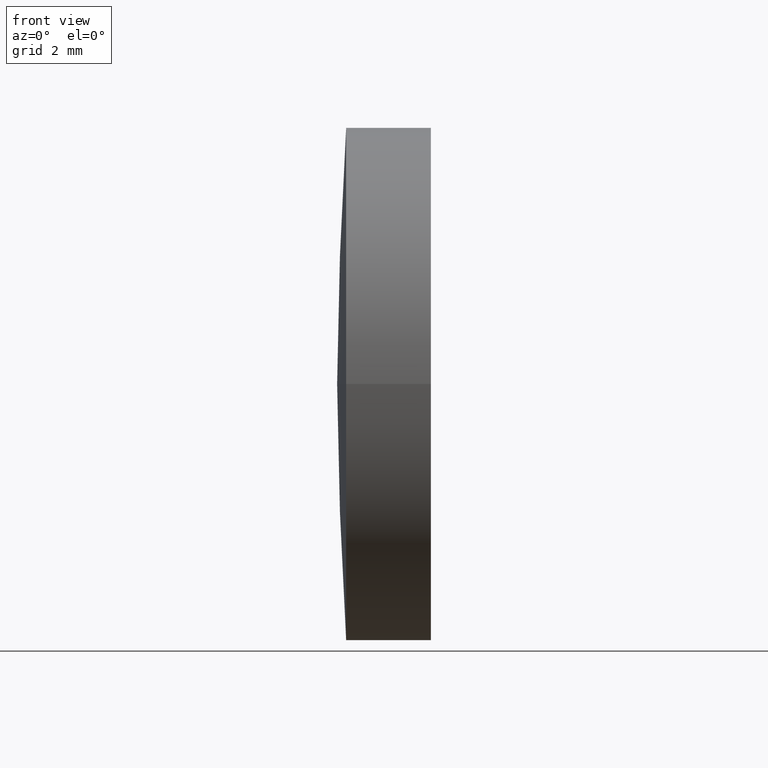
[diagram: clean part render]
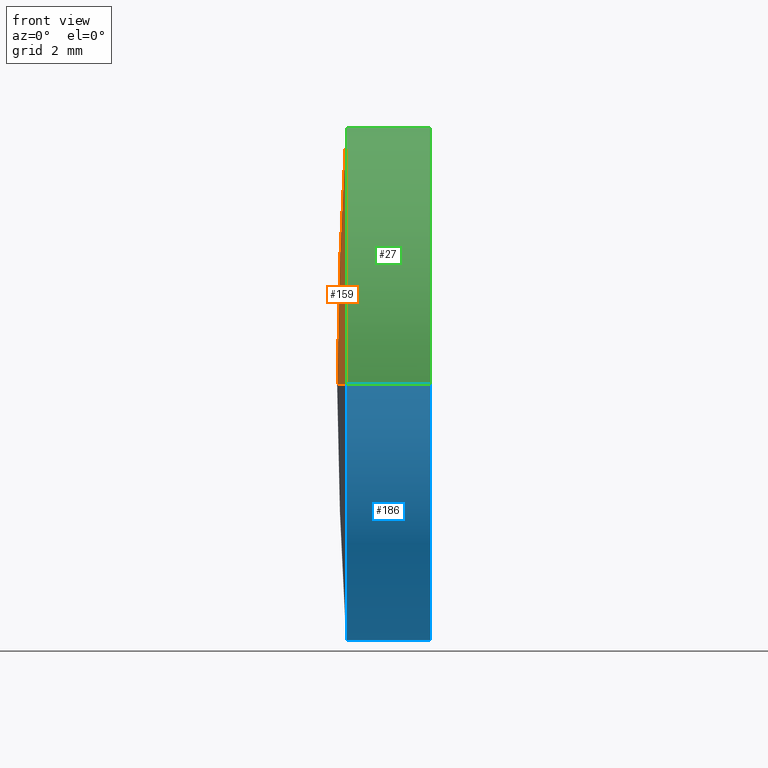
[diagram: same view with three faces highlighted in distinct colors, each labeled with its STEP entity id]
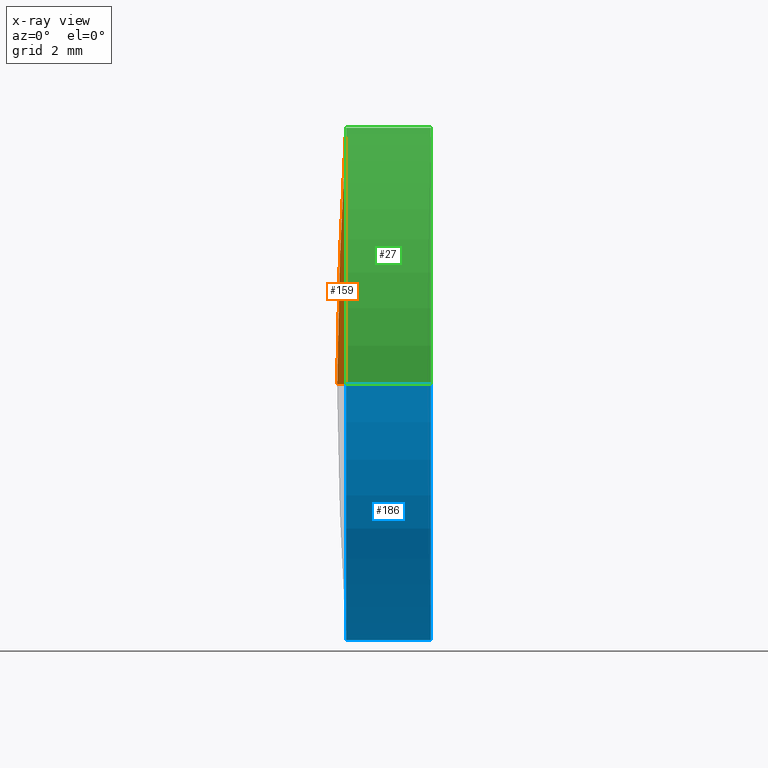
[diagram: x-ray of the same camera — body ghosted, the three highlighted faces saturated]
A machine part, front view with three faces highlighted in distinct colors.
The next image is the same camera in x-ray (body ghosted, the three faces saturated) — at least one of them is partly hidden behind the body in this view.
Their STEP definitions:

[orange] entity #159 — the highlighted spherical surface has radius 89 mm.
#3 = VERTEX_POINT ( 'NONE', #95 ) ;
#12 = AXIS2_PLACEMENT_3D ( 'NONE', #160, #147, #156 ) ;
#13 = DIRECTION ( 'NONE',  ( -0.0000000000000000000, 0.0000000000000000000, -1.000000000000000000 ) ) ;
#16 = DIRECTION ( 'NONE',  ( -0.0000000000000000000, 0.0000000000000000000, 1.000000000000000000 ) ) ;
#17 = EDGE_CURVE ( 'NONE', #154, #36, #68, .T. ) ;
#20 = AXIS2_PLACEMENT_3D ( 'NONE', #99, #13, #105 ) ;
#25 = EDGE_CURVE ( 'NONE', #154, #3, #52, .T. ) ;
#30 = CARTESIAN_POINT ( 'NONE',  ( 61.49363409550321100, 26.35842023547024800, -7.654042494670787000E-016 ) ) ;
#36 = VERTEX_POINT ( 'NONE', #145 ) ;
#37 = AXIS2_PLACEMENT_3D ( 'NONE', #132, #16, #45 ) ;
#42 = DIRECTION ( 'NONE',  ( -8.496118506040342700E-032, 1.224646799147353200E-016, -1.000000000000000000 ) ) ;
#45 = DIRECTION ( 'NONE',  ( 1.000000000000000000, 0.0000000000000000000, 0.0000000000000000000 ) ) ;
#52 = CIRCLE ( 'NONE', #100, 89.00000000000001400 ) ;
#63 = FACE_OUTER_BOUND ( 'NONE', #92, .T. ) ;
#68 = CIRCLE ( 'NONE', #12, 6.249999999999981300 ) ;
#83 = DIRECTION ( 'NONE',  ( 0.0000000000000000000, 1.000000000000000000, 1.224646799147353000E-016 ) ) ;
#92 = EDGE_LOOP ( 'NONE', ( #172, #115, #120 ) ) ;
#95 = CARTESIAN_POINT ( 'NONE',  ( 61.27391062131722100, 32.60842023547011300, 0.0000000000000000000 ) ) ;
#99 = CARTESIAN_POINT ( 'NONE',  ( 150.2739106213172400, 32.60842023547017000, 0.0000000000000000000 ) ) ;
#100 = AXIS2_PLACEMENT_3D ( 'NONE', #131, #42, #83 ) ;
#104 = EDGE_CURVE ( 'NONE', #36, #3, #169, .T. ) ;
#105 = DIRECTION ( 'NONE',  ( -6.237208003512114900E-016, 1.000000000000000000, 0.0000000000000000000 ) ) ;
#114 = SPHERICAL_SURFACE ( 'NONE', #20, 89.00000000000001400 ) ;
#115 = ORIENTED_EDGE ( 'NONE', *, *, #17, .T. ) ;
#120 = ORIENTED_EDGE ( 'NONE', *, *, #104, .T. ) ;
#131 = CARTESIAN_POINT ( 'NONE',  ( 150.2739106213172400, 32.60842023547017000, 0.0000000000000000000 ) ) ;
#132 = CARTESIAN_POINT ( 'NONE',  ( 150.2739106213172400, 32.60842023547017000, 0.0000000000000000000 ) ) ;
#145 = CARTESIAN_POINT ( 'NONE',  ( 61.49363409550321100, 38.85842023547002100, 0.0000000000000000000 ) ) ;
#147 = DIRECTION ( 'NONE',  ( -1.000000000000000000, -6.937607244762875000E-016, -0.0000000000000000000 ) ) ;
#154 = VERTEX_POINT ( 'NONE', #30 ) ;
#156 = DIRECTION ( 'NONE',  ( 1.110223024625159900E-015, -1.000000000000000000, 0.0000000000000000000 ) ) ;
#159 = ADVANCED_FACE ( 'NONE', ( #63 ), #114, .T. ) ;
#160 = CARTESIAN_POINT ( 'NONE',  ( 61.49363409550322500, 32.60842023547016300, 0.0000000000000000000 ) ) ;
#169 = CIRCLE ( 'NONE', #37, 89.00000000000002800 ) ;
#172 = ORIENTED_EDGE ( 'NONE', *, *, #25, .F. ) ;

[blue] entity #186 — the highlighted cylindrical surface (partial cylindrical patch) has radius 6.25 mm, axis along (-1, -0, -0).
#4 = EDGE_CURVE ( 'NONE', #125, #154, #127, .T. ) ;
#9 = CARTESIAN_POINT ( 'NONE',  ( 57.97224564898159100, 26.35842023547018400, 0.0000000000000000000 ) ) ;
#10 = LINE ( 'NONE', #69, #146 ) ;
#18 = ORIENTED_EDGE ( 'NONE', *, *, #170, .T. ) ;
#19 = CYLINDRICAL_SURFACE ( 'NONE', #126, 6.249999999999977800 ) ;
#28 = DIRECTION ( 'NONE',  ( 1.110223024625159900E-015, -1.000000000000000000, 0.0000000000000000000 ) ) ;
#30 = CARTESIAN_POINT ( 'NONE',  ( 61.49363409550321100, 26.35842023547024800, -7.654042494670787000E-016 ) ) ;
#36 = VERTEX_POINT ( 'NONE', #145 ) ;
#40 = EDGE_CURVE ( 'NONE', #123, #36, #10, .T. ) ;
#50 = CARTESIAN_POINT ( 'NONE',  ( 57.97224564898158400, 32.60842023547016300, 0.0000000000000000000 ) ) ;
#54 = ORIENTED_EDGE ( 'NONE', *, *, #96, .F. ) ;
#57 = CARTESIAN_POINT ( 'NONE',  ( 63.55530463170246200, 38.85842023547034100, 0.0000000000000000000 ) ) ;
#58 = DIRECTION ( 'NONE',  ( 1.110223024625160500E-015, -1.000000000000000000, 0.0000000000000000000 ) ) ;
#66 = AXIS2_PLACEMENT_3D ( 'NONE', #133, #150, #176 ) ;
#69 = CARTESIAN_POINT ( 'NONE',  ( 57.97224564898157700, 38.85842023547014200, 7.654042494670930000E-016 ) ) ;
#76 = ORIENTED_EDGE ( 'NONE', *, *, #40, .F. ) ;
#78 = CIRCLE ( 'NONE', #189, 6.249999999999981300 ) ;
#82 = VECTOR ( 'NONE', #116, 1000.000000000000000 ) ;
#91 = FACE_OUTER_BOUND ( 'NONE', #181, .T. ) ;
#96 = EDGE_CURVE ( 'NONE', #36, #154, #78, .T. ) ;
#102 = DIRECTION ( 'NONE',  ( -1.000000000000000000, -6.937607244762875000E-016, -0.0000000000000000000 ) ) ;
#116 = DIRECTION ( 'NONE',  ( -1.000000000000000000, -6.937607244762875000E-016, -0.0000000000000000000 ) ) ;
#123 = VERTEX_POINT ( 'NONE', #57 ) ;
#125 = VERTEX_POINT ( 'NONE', #134 ) ;
#126 = AXIS2_PLACEMENT_3D ( 'NONE', #50, #102, #58 ) ;
#127 = LINE ( 'NONE', #9, #82 ) ;
#133 = CARTESIAN_POINT ( 'NONE',  ( 63.55530463170244800, 32.60842023547017000, 0.0000000000000000000 ) ) ;
#134 = CARTESIAN_POINT ( 'NONE',  ( 63.55530463170246200, 26.35842023546987200, -7.654042494671163700E-016 ) ) ;
#139 = CIRCLE ( 'NONE', #66, 6.249999999999974200 ) ;
#145 = CARTESIAN_POINT ( 'NONE',  ( 61.49363409550321100, 38.85842023547002100, 0.0000000000000000000 ) ) ;
#146 = VECTOR ( 'NONE', #182, 1000.000000000000000 ) ;
#149 = DIRECTION ( 'NONE',  ( -1.000000000000000000, -6.937607244762875000E-016, -0.0000000000000000000 ) ) ;
#150 = DIRECTION ( 'NONE',  ( -1.000000000000000000, -6.937607244762875000E-016, -0.0000000000000000000 ) ) ;
#151 = CARTESIAN_POINT ( 'NONE',  ( 61.49363409550322500, 32.60842023547016300, 0.0000000000000000000 ) ) ;
#154 = VERTEX_POINT ( 'NONE', #30 ) ;
#170 = EDGE_CURVE ( 'NONE', #123, #125, #139, .T. ) ;
#176 = DIRECTION ( 'NONE',  ( 0.0000000000000000000, -1.000000000000000000, 0.0000000000000000000 ) ) ;
#177 = ORIENTED_EDGE ( 'NONE', *, *, #4, .T. ) ;
#181 = EDGE_LOOP ( 'NONE', ( #76, #18, #177, #54 ) ) ;
#182 = DIRECTION ( 'NONE',  ( -1.000000000000000000, -6.937607244762875000E-016, -0.0000000000000000000 ) ) ;
#186 = ADVANCED_FACE ( 'NONE', ( #91 ), #19, .T. ) ;
#189 = AXIS2_PLACEMENT_3D ( 'NONE', #151, #149, #28 ) ;

[green] entity #27 — the highlighted cylindrical surface (partial cylindrical patch) has radius 6.25 mm, axis along (-1, -0, -0).
#4 = EDGE_CURVE ( 'NONE', #125, #154, #127, .T. ) ;
#7 = DIRECTION ( 'NONE',  ( -1.000000000000000000, -6.937607244762875000E-016, -0.0000000000000000000 ) ) ;
#9 = CARTESIAN_POINT ( 'NONE',  ( 57.97224564898159100, 26.35842023547018400, 0.0000000000000000000 ) ) ;
#10 = LINE ( 'NONE', #69, #146 ) ;
#12 = AXIS2_PLACEMENT_3D ( 'NONE', #160, #147, #156 ) ;
#14 = CARTESIAN_POINT ( 'NONE',  ( 63.55530463170244800, 32.60842023547017000, 0.0000000000000000000 ) ) ;
#15 = DIRECTION ( 'NONE',  ( 0.0000000000000000000, -1.000000000000000000, 0.0000000000000000000 ) ) ;
#17 = EDGE_CURVE ( 'NONE', #154, #36, #68, .T. ) ;
#22 = ORIENTED_EDGE ( 'NONE', *, *, #40, .T. ) ;
#27 = ADVANCED_FACE ( 'NONE', ( #152 ), #158, .T. ) ;
#30 = CARTESIAN_POINT ( 'NONE',  ( 61.49363409550321100, 26.35842023547024800, -7.654042494670787000E-016 ) ) ;
#35 = ORIENTED_EDGE ( 'NONE', *, *, #17, .F. ) ;
#36 = VERTEX_POINT ( 'NONE', #145 ) ;
#40 = EDGE_CURVE ( 'NONE', #123, #36, #10, .T. ) ;
#41 = CARTESIAN_POINT ( 'NONE',  ( 57.97224564898158400, 32.60842023547016300, 0.0000000000000000000 ) ) ;
#51 = AXIS2_PLACEMENT_3D ( 'NONE', #14, #136, #15 ) ;
#57 = CARTESIAN_POINT ( 'NONE',  ( 63.55530463170246200, 38.85842023547034100, 0.0000000000000000000 ) ) ;
#68 = CIRCLE ( 'NONE', #12, 6.249999999999981300 ) ;
#69 = CARTESIAN_POINT ( 'NONE',  ( 57.97224564898157700, 38.85842023547014200, 7.654042494670930000E-016 ) ) ;
#77 = ORIENTED_EDGE ( 'NONE', *, *, #4, .F. ) ;
#82 = VECTOR ( 'NONE', #116, 1000.000000000000000 ) ;
#97 = DIRECTION ( 'NONE',  ( 1.110223024625160500E-015, -1.000000000000000000, 0.0000000000000000000 ) ) ;
#108 = ORIENTED_EDGE ( 'NONE', *, *, #129, .T. ) ;
#116 = DIRECTION ( 'NONE',  ( -1.000000000000000000, -6.937607244762875000E-016, -0.0000000000000000000 ) ) ;
#123 = VERTEX_POINT ( 'NONE', #57 ) ;
#125 = VERTEX_POINT ( 'NONE', #134 ) ;
#127 = LINE ( 'NONE', #9, #82 ) ;
#129 = EDGE_CURVE ( 'NONE', #125, #123, #142, .T. ) ;
#134 = CARTESIAN_POINT ( 'NONE',  ( 63.55530463170246200, 26.35842023546987200, -7.654042494671163700E-016 ) ) ;
#136 = DIRECTION ( 'NONE',  ( -1.000000000000000000, -6.937607244762875000E-016, -0.0000000000000000000 ) ) ;
#142 = CIRCLE ( 'NONE', #51, 6.249999999999974200 ) ;
#145 = CARTESIAN_POINT ( 'NONE',  ( 61.49363409550321100, 38.85842023547002100, 0.0000000000000000000 ) ) ;
#146 = VECTOR ( 'NONE', #182, 1000.000000000000000 ) ;
#147 = DIRECTION ( 'NONE',  ( -1.000000000000000000, -6.937607244762875000E-016, -0.0000000000000000000 ) ) ;
#152 = FACE_OUTER_BOUND ( 'NONE', #166, .T. ) ;
#154 = VERTEX_POINT ( 'NONE', #30 ) ;
#156 = DIRECTION ( 'NONE',  ( 1.110223024625159900E-015, -1.000000000000000000, 0.0000000000000000000 ) ) ;
#158 = CYLINDRICAL_SURFACE ( 'NONE', #173, 6.249999999999977800 ) ;
#160 = CARTESIAN_POINT ( 'NONE',  ( 61.49363409550322500, 32.60842023547016300, 0.0000000000000000000 ) ) ;
#166 = EDGE_LOOP ( 'NONE', ( #108, #22, #35, #77 ) ) ;
#173 = AXIS2_PLACEMENT_3D ( 'NONE', #41, #7, #97 ) ;
#182 = DIRECTION ( 'NONE',  ( -1.000000000000000000, -6.937607244762875000E-016, -0.0000000000000000000 ) ) ;